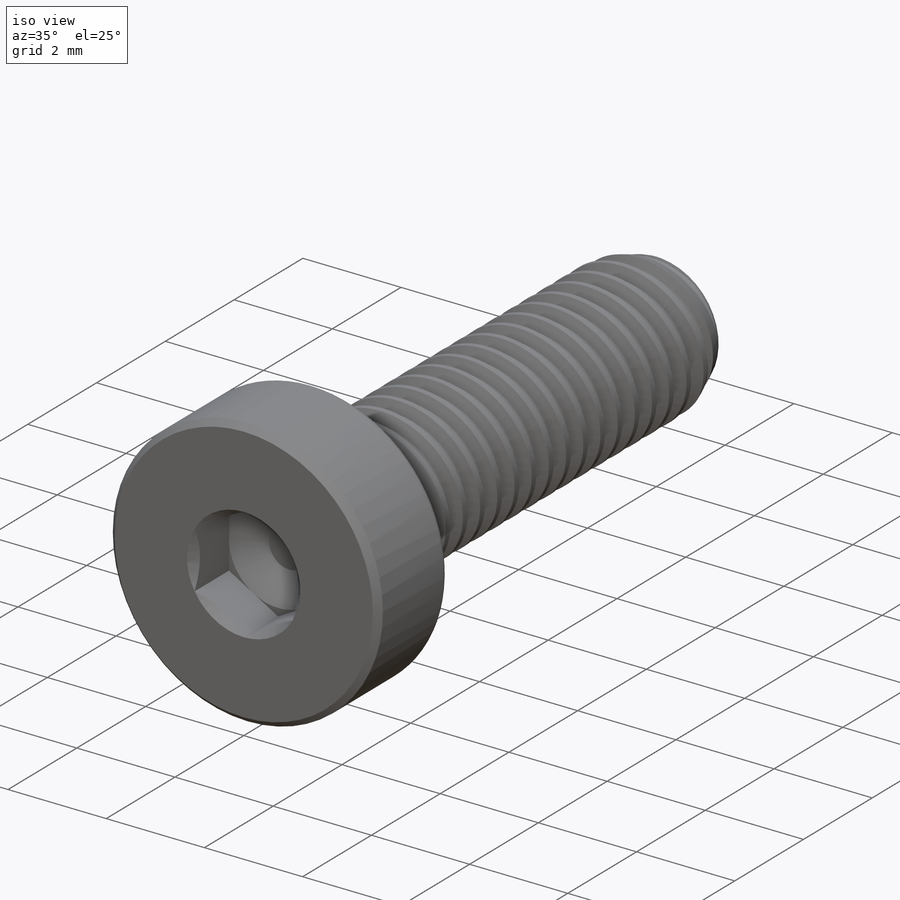
[diagram: iso view]
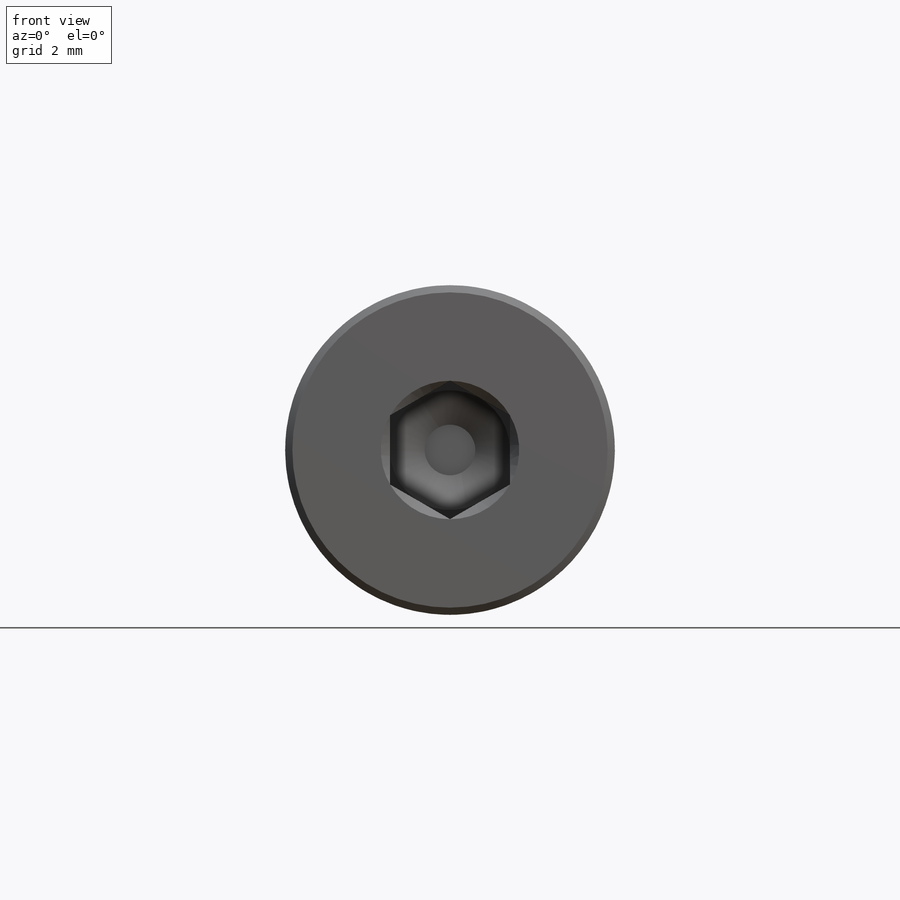
[diagram: front view]
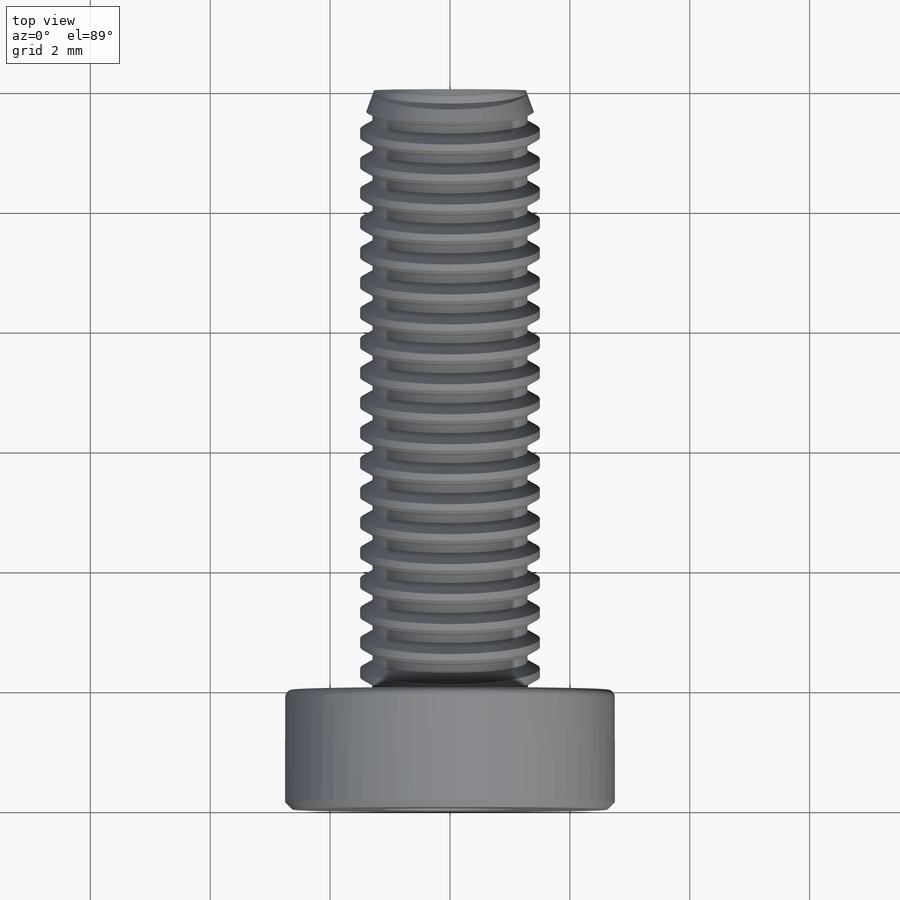
[diagram: top view]
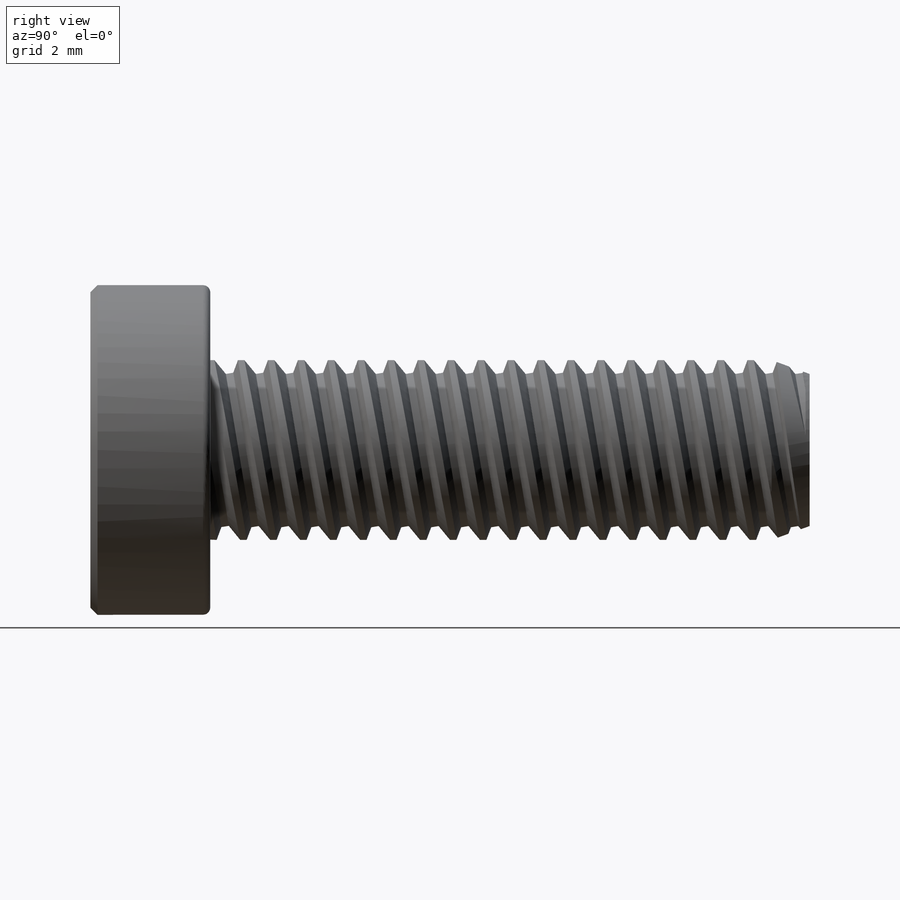
[diagram: right view]
SOLIDWORKS PART (.sldprt)
format: sldprt  version: not decoded by parser v0  size: 695,808 bytes
history: native  units: mm
features: sketch x8, cut_revolve x3, cut_extrude x3, material x1, revolve x1, pattern_linear x1, plane x1, extrude x1 (+11 scaffold rows collapsed)
feature tree (30):
  scaffold x11  (default folders/planes/origin — collapsed)
  material  "Material <not specified>"
  sketch  "Sketch1"  dims[c1.Thread Dia=3.0mm c1.Min Thread Length=10.0mm c1.Screw Length=60.0mm c1.Head Height=6.0mm c1.Head Dia=5.5mm c2.Head Height=2.0mm]
  revolve  "Revolve1"  Angle=360deg
  sketch  "Sketch2"  dims[c1.Thread Pitch=0.5mm c1.D2=0.0625mm c1.D3=0.125mm c1.D4=0.5mm c1.D1=~12.704307mm c2.D1=60.0deg c2.Thread Length=298.45mm c2.Min Thread Length=190.5mm c2.D5=~294.890463mm c2.D6=~292.121934mm c3.D5=90.0deg c4.D5=190.5mm c4.D6=90.0deg c4.Thread Length=298.45mm c5.D5=~4.763642deg c5.Min Thread Length=23.8125mm]
  cut_revolve  "Cut-Revolve1"  Angle=360deg
  sketch  "Sketch3"  dims[c1.D1=~17.969819mm c2.D1=20.0deg c2.D2=3.0mm]
  cut_revolve  "Cut-Revolve2"  Angle=360deg
  pattern_linear  "LPattern1"  Count1=20 Count2=2 Spacing1=0.5mm Spacing2=0.5mm
  plane  "Plane1"  Offset=0mm
  sketch  "Sketch4"  dims[Head Dia=14.2748mm D1=5.5mm]
  extrude  "Extrude1"  [1 undecoded]
  sketch  "Sketch10"  dims[c1.D1=~1.172131mm c2.D1=45.0deg c2.D2=0.1mm c2.D3=0.1mm c2.D4=0.12mm c2.D5=2.0mm c2.D6=10.0mm]
  cut_revolve  "Cut-Revolve3"  Angle=360deg
  sketch  "Sketch6"  dims[Hex=2.0mm]
  cut_extrude  "Cut-Extrude1"  Depth=1mm
  sketch  "Sketch7"
  cut_extrude  "Cut-Extrude4"  Depth=1mm
  sketch  "Sketch8"
  cut_extrude  "Cut-Extrude5"  Depth=0.333333mm
decode coverage: 14 of 17 modeling features carry decoded parameters
note: ~ marks probable driven/reference dimensions
note: 1 parameter value undecoded
note: suppression state not decoded; provenance and decode notes live in map.json
